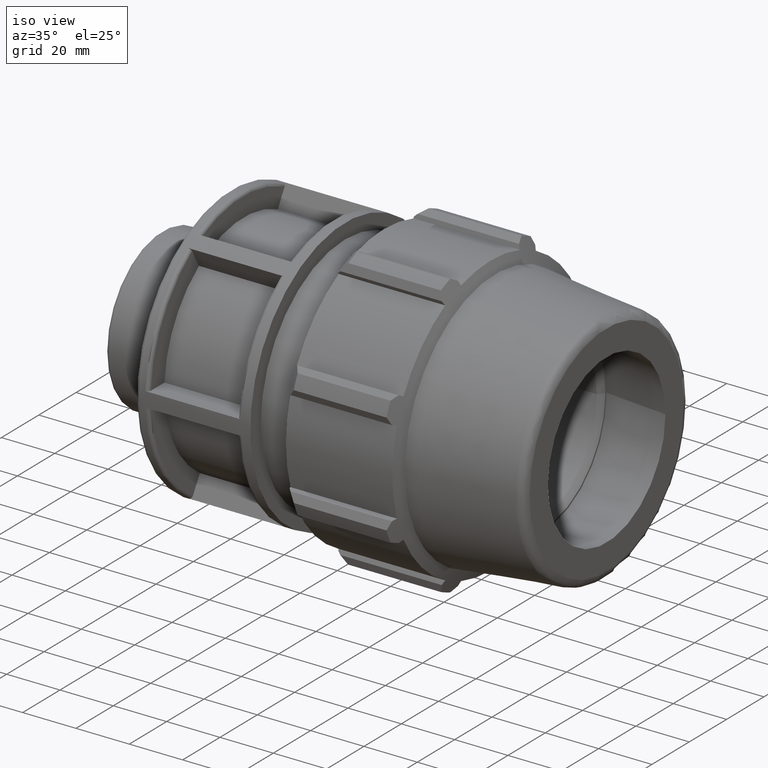
[diagram: clean part render]
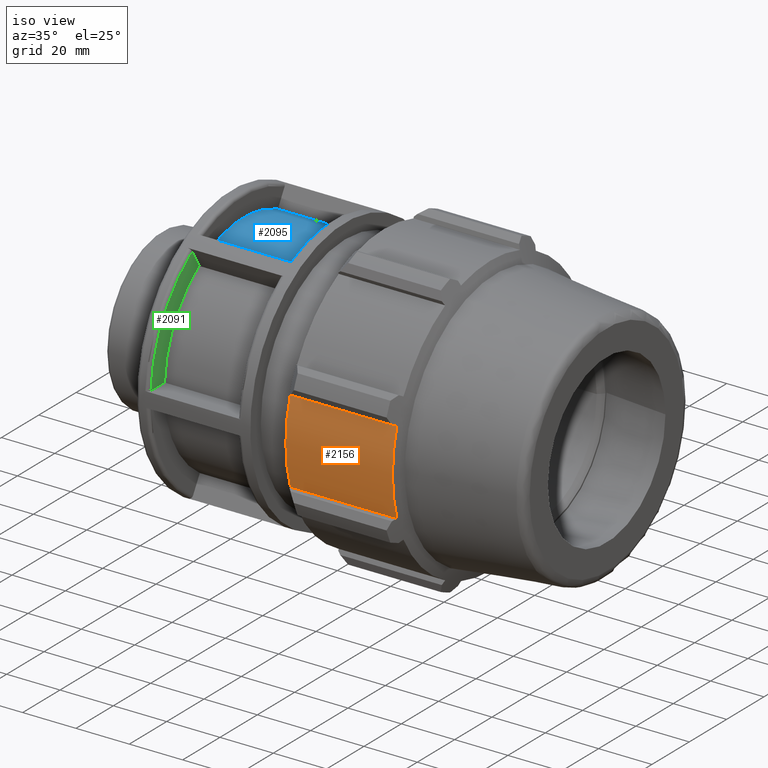
[diagram: same view with three faces highlighted in distinct colors, each labeled with its STEP entity id]
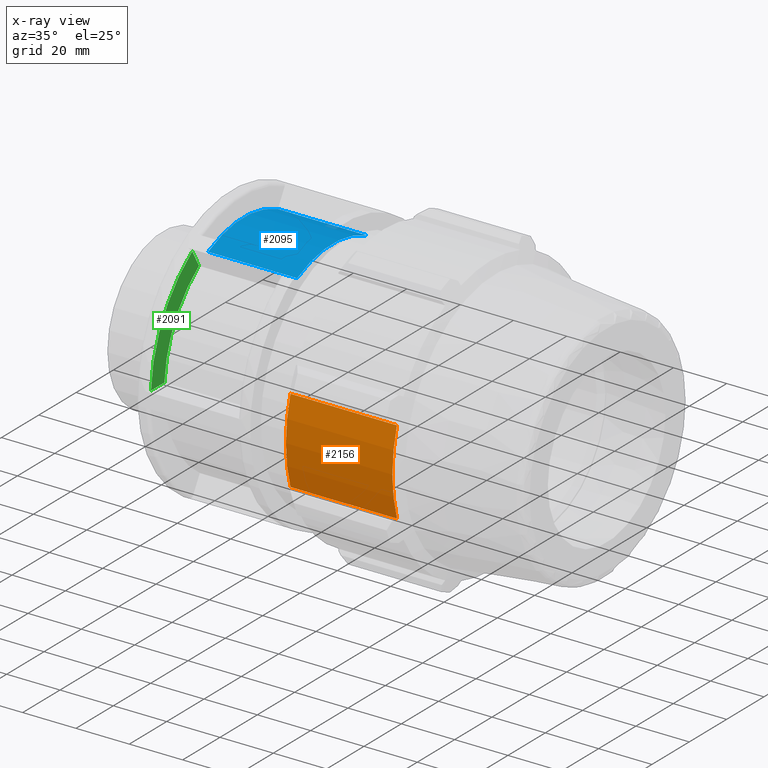
[diagram: x-ray of the same camera — body ghosted, the three highlighted faces saturated]
A machine part, iso view with three faces highlighted in distinct colors.
The next image is the same camera in x-ray (body ghosted, the three faces saturated) — at least one of them is partly hidden behind the body in this view.
Their STEP definitions:

[orange] entity #2156 — the highlighted cylindrical surface (partial cylindrical patch) has radius 52.545 mm, axis along (1, 0, 0).
#136=LINE('',#3545,#280);
#190=LINE('',#3792,#334);
#280=VECTOR('',#2699,39.9437525579307);
#334=VECTOR('',#2865,39.9437525579307);
#383=CYLINDRICAL_SURFACE('',#2368,52.545);
#586=FACE_OUTER_BOUND('',#724,.T.);
#724=EDGE_LOOP('',(#1866,#1867,#1868,#1869));
#801=CIRCLE('',#2278,52.545);
#824=CIRCLE('',#2330,52.545);
#947=VERTEX_POINT('',#3473);
#948=VERTEX_POINT('',#3475);
#969=VERTEX_POINT('',#3543);
#1024=VERTEX_POINT('',#3740);
#1184=EDGE_CURVE('',#947,#948,#801,.T.);
#1213=EDGE_CURVE('',#947,#969,#136,.T.);
#1291=EDGE_CURVE('',#1024,#969,#824,.T.);
#1317=EDGE_CURVE('',#948,#1024,#190,.T.);
#1866=ORIENTED_EDGE('',*,*,#1291,.F.);
#1867=ORIENTED_EDGE('',*,*,#1317,.F.);
#1868=ORIENTED_EDGE('',*,*,#1184,.F.);
#1869=ORIENTED_EDGE('',*,*,#1213,.T.);
#2156=ADVANCED_FACE('',(#586),#383,.T.);
#2278=AXIS2_PLACEMENT_3D('',#3476,#2656,#2657);
#2330=AXIS2_PLACEMENT_3D('',#3742,#2817,#2818);
#2368=AXIS2_PLACEMENT_3D('',#3829,#2919,#2920);
#2656=DIRECTION('center_axis',(-1.,0.,0.));
#2657=DIRECTION('ref_axis',(0.,0.953716950748227,0.300705799504273));
#2699=DIRECTION('',(1.,0.,0.));
#2817=DIRECTION('center_axis',(1.,0.,0.));
#2818=DIRECTION('ref_axis',(0.,0.953716950748227,0.300705799504273));
#2865=DIRECTION('',(1.,0.,0.));
#2919=DIRECTION('center_axis',(1.,0.,0.));
#2920=DIRECTION('ref_axis',(0.,0.953716950748227,0.300705799504273));
#3473=CARTESIAN_POINT('',(83.5,-50.1130571770656,-15.800586234952));
#3475=CARTESIAN_POINT('',(83.5,-50.1130571770656,15.800586234952));
#3476=CARTESIAN_POINT('Origin',(83.5,0.,0.));
#3543=CARTESIAN_POINT('',(123.443752557931,-50.1130571770656,-15.800586234952));
#3545=CARTESIAN_POINT('',(83.5,-50.1130571770656,-15.800586234952));
#3740=CARTESIAN_POINT('',(123.443752557931,-50.1130571770656,15.800586234952));
#3742=CARTESIAN_POINT('Origin',(123.443752557931,0.,0.));
#3792=CARTESIAN_POINT('',(83.5,-50.1130571770656,15.800586234952));
#3829=CARTESIAN_POINT('Origin',(83.5,0.,0.));

[blue] entity #2095 — the highlighted cylindrical surface (partial cylindrical patch) has radius 42.375 mm, axis along (1, 0, 0).
#96=LINE('',#3376,#240);
#99=LINE('',#3381,#243);
#240=VECTOR('',#2563,33.4);
#243=VECTOR('',#2568,33.4);
#373=CYLINDRICAL_SURFACE('',#2256,42.375);
#525=FACE_OUTER_BOUND('',#654,.T.);
#654=EDGE_LOOP('',(#1526,#1527,#1528,#1529));
#777=CIRCLE('',#2227,42.375);
#782=CIRCLE('',#2248,42.375);
#898=VERTEX_POINT('',#3307);
#899=VERTEX_POINT('',#3309);
#912=VERTEX_POINT('',#3375);
#913=VERTEX_POINT('',#3379);
#1116=EDGE_CURVE('',#898,#899,#777,.T.);
#1139=EDGE_CURVE('',#912,#899,#96,.T.);
#1142=EDGE_CURVE('',#898,#913,#99,.T.);
#1147=EDGE_CURVE('',#913,#912,#782,.T.);
#1526=ORIENTED_EDGE('',*,*,#1139,.T.);
#1527=ORIENTED_EDGE('',*,*,#1116,.F.);
#1528=ORIENTED_EDGE('',*,*,#1142,.T.);
#1529=ORIENTED_EDGE('',*,*,#1147,.T.);
#2095=ADVANCED_FACE('',(#525),#373,.T.);
#2227=AXIS2_PLACEMENT_3D('',#3310,#2514,#2515);
#2248=AXIS2_PLACEMENT_3D('',#3391,#2580,#2581);
#2256=AXIS2_PLACEMENT_3D('',#3400,#2597,#2598);
#2514=DIRECTION('center_axis',(1.,0.,0.));
#2515=DIRECTION('ref_axis',(0.,0.,-1.));
#2563=DIRECTION('',(1.,0.,0.));
#2568=DIRECTION('',(-1.,0.,0.));
#2580=DIRECTION('center_axis',(1.,0.,0.));
#2581=DIRECTION('ref_axis',(0.,0.,-1.));
#2597=DIRECTION('center_axis',(1.,0.,0.));
#2598=DIRECTION('ref_axis',(0.,1.,0.));
#3307=CARTESIAN_POINT('',(64.1714285714286,18.4541079162996,38.1455964170646));
#3309=CARTESIAN_POINT('',(64.1714285714286,-18.9327360836206,37.9103169254488));
#3310=CARTESIAN_POINT('Origin',(64.1714285714286,0.,0.));
#3375=CARTESIAN_POINT('',(30.7714285714286,-18.9327360836206,37.9103169254488));
#3376=CARTESIAN_POINT('',(47.4714285714286,-18.9327360836206,37.9103169254488));
#3379=CARTESIAN_POINT('',(30.7714285714286,18.4541079162996,38.1455964170646));
#3381=CARTESIAN_POINT('',(47.4714285714286,18.4541079162996,38.1455964170646));
#3391=CARTESIAN_POINT('Origin',(30.7714285714286,0.,0.));
#3400=CARTESIAN_POINT('Origin',(47.4714285714286,0.,0.));

[green] entity #2091 — the highlighted planar face has unit normal (1, 0, 0).
#93=LINE('',#3369,#237);
#94=LINE('',#3372,#238);
#237=VECTOR('',#2556,7.22626791419708);
#238=VECTOR('',#2559,7.23145952084636);
#417=PLANE('',#2249);
#521=FACE_OUTER_BOUND('',#650,.T.);
#650=EDGE_LOOP('',(#1510,#1511,#1512,#1513));
#765=CIRCLE('',#2203,49.59);
#783=CIRCLE('',#2250,42.375);
#874=VERTEX_POINT('',#3091);
#875=VERTEX_POINT('',#3102);
#910=VERTEX_POINT('',#3367);
#911=VERTEX_POINT('',#3371);
#1081=EDGE_CURVE('',#875,#874,#765,.T.);
#1136=EDGE_CURVE('',#875,#910,#93,.T.);
#1137=EDGE_CURVE('',#911,#874,#94,.T.);
#1148=EDGE_CURVE('',#911,#910,#783,.T.);
#1510=ORIENTED_EDGE('',*,*,#1081,.F.);
#1511=ORIENTED_EDGE('',*,*,#1136,.T.);
#1512=ORIENTED_EDGE('',*,*,#1148,.F.);
#1513=ORIENTED_EDGE('',*,*,#1137,.T.);
#2091=ADVANCED_FACE('',(#521),#417,.T.);
#2203=AXIS2_PLACEMENT_3D('',#3113,#2457,#2458);
#2249=AXIS2_PLACEMENT_3D('',#3392,#2582,#2583);
#2250=AXIS2_PLACEMENT_3D('',#3393,#2584,#2585);
#2457=DIRECTION('center_axis',(-1.,0.,0.));
#2458=DIRECTION('ref_axis',(0.,-0.868633801824171,0.495454658196374));
#2556=DIRECTION('',(0.,1.,4.9960036108132E-16));
#2559=DIRECTION('',(0.,-0.5,0.866025403784439));
#2582=DIRECTION('center_axis',(1.,0.,0.));
#2583=DIRECTION('ref_axis',(0.,0.,-1.));
#2584=DIRECTION('center_axis',(1.,0.,0.));
#2585=DIRECTION('ref_axis',(0.,0.,-1.));
#3091=CARTESIAN_POINT('',(30.7714285714286,-27.42373134196,41.317152119719));
#3102=CARTESIAN_POINT('',(30.7714285714286,-49.5239334789652,2.55892805116265));
#3113=CARTESIAN_POINT('Origin',(30.7714285714286,0.,0.));
#3367=CARTESIAN_POINT('',(30.7714285714286,-42.2976655647682,2.55892805116266));
#3369=CARTESIAN_POINT('',(30.7714285714286,-4.20528631436974,2.55892805116268));
#3371=CARTESIAN_POINT('',(30.7714285714286,-23.8080015815368,35.0545244682272));
#3372=CARTESIAN_POINT('',(30.7714285714286,-5.88168330174604,4.00523041497891));
#3392=CARTESIAN_POINT('Origin',(30.7714285714286,42.375,0.));
#3393=CARTESIAN_POINT('Origin',(30.7714285714286,0.,0.));